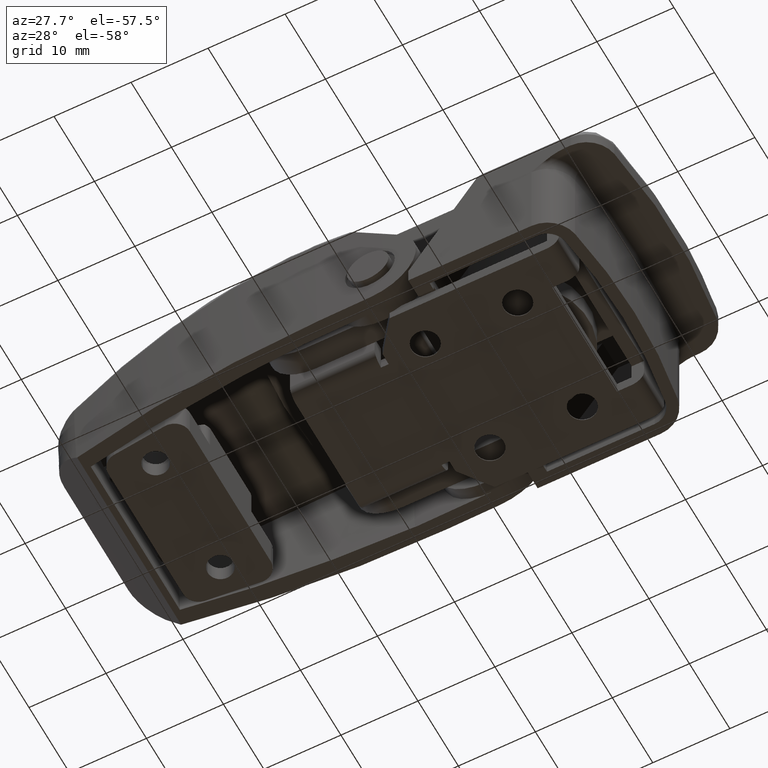
[diagram: clean part render]
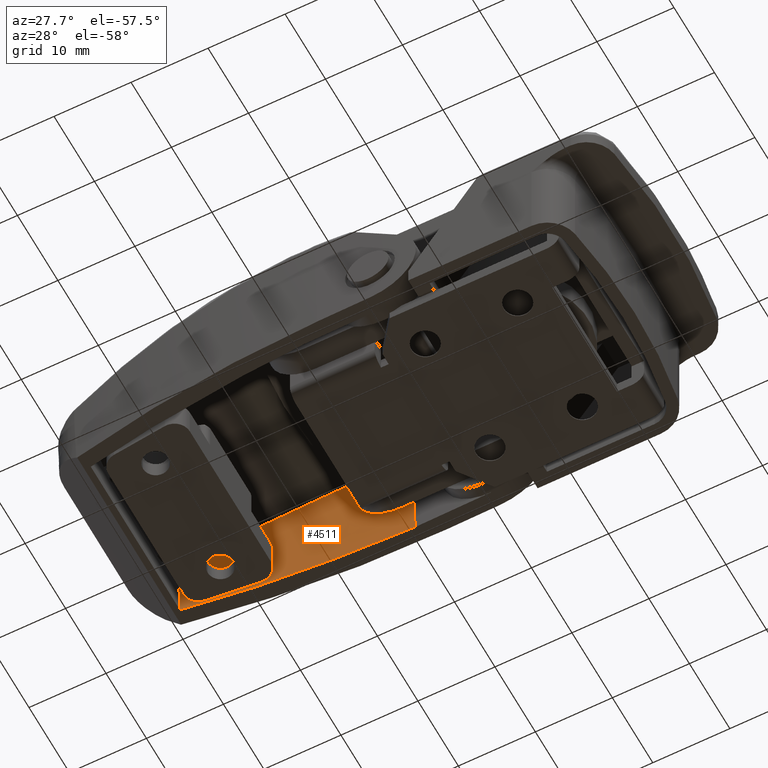
[diagram: same view with one face highlighted and labeled with its STEP entity id]
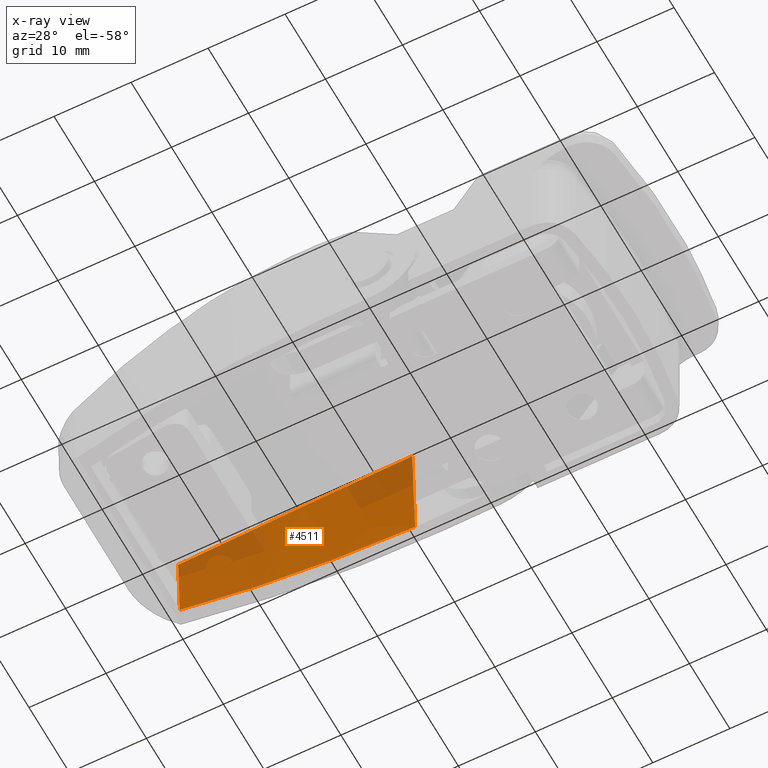
[diagram: x-ray of the same camera — body ghosted, the highlighted face saturated]
A machine part, auxiliary view. The second image highlights one B-rep face of the part: STEP entity #4511.
The next image is the same camera in x-ray: the body ghosted, the highlighted face saturated — about 22% of this face is hidden behind the body in this view.
In plain terms, the highlighted face is a freeform B-spline surface patch.
Its self-contained STEP definition (entity closure, byte-faithful):
#107=B_SPLINE_CURVE_WITH_KNOTS('',3,(#7676,#7677,#7678,#7679),
 .UNSPECIFIED.,.F.,.F.,(4,4),(0.,1.),.UNSPECIFIED.);
#120=B_SPLINE_CURVE_WITH_KNOTS('',3,(#8166,#8167,#8168,#8169),
 .UNSPECIFIED.,.F.,.F.,(4,4),(0.,1.),.UNSPECIFIED.);
#178=B_SPLINE_SURFACE_WITH_KNOTS('',3,1,((#8421,#8422),(#8423,#8424),(#8425,
#8426),(#8427,#8428)),.UNSPECIFIED.,.F.,.F.,.F.,(4,4),(2,2),(0.,1.),(0.,
1.84905431689721),.UNSPECIFIED.);
#523=FACE_OUTER_BOUND('',#831,.T.);
#831=EDGE_LOOP('',(#3556,#3557,#3558,#3559));
#1098=LINE('',#7587,#1450);
#1143=LINE('',#8396,#1495);
#1450=VECTOR('',#5486,9.76343545024876);
#1495=VECTOR('',#5655,15.4087859741434);
#2049=VERTEX_POINT('',#7584);
#2050=VERTEX_POINT('',#7586);
#2057=VERTEX_POINT('',#7675);
#2096=VERTEX_POINT('',#8164);
#2528=EDGE_CURVE('',#2049,#2050,#1098,.T.);
#2537=EDGE_CURVE('',#2057,#2050,#107,.T.);
#2601=EDGE_CURVE('',#2096,#2049,#120,.T.);
#2634=EDGE_CURVE('',#2096,#2057,#1143,.T.);
#3556=ORIENTED_EDGE('',*,*,#2634,.T.);
#3557=ORIENTED_EDGE('',*,*,#2537,.T.);
#3558=ORIENTED_EDGE('',*,*,#2528,.F.);
#3559=ORIENTED_EDGE('',*,*,#2601,.F.);
#4511=ADVANCED_FACE('',(#523),#178,.F.);
#5486=DIRECTION('',(-4.85343398743238E-16,1.,-2.00133706347235E-14));
#5655=DIRECTION('',(-4.85343398743238E-16,1.,1.08076946472762E-16));
#7584=CARTESIAN_POINT('',(-39.,-6.00000000000001,-11.0168984994584));
#7586=CARTESIAN_POINT('',(-39.,3.76343545024875,-11.0168984994585));
#7587=CARTESIAN_POINT('',(-39.,3.76343545024876,-11.0168984994585));
#7675=CARTESIAN_POINT('',(-10.,9.40878597414338,-13.9740052686612));
#7676=CARTESIAN_POINT('Ctrl Pts',(-10.,9.40878597414338,-13.9740052686612));
#7677=CARTESIAN_POINT('Ctrl Pts',(-13.3333333333333,9.40878597414338,-13.9740052686612));
#7678=CARTESIAN_POINT('Ctrl Pts',(-29.3333333333333,7.5270024661785,-12.9883030122603));
#7679=CARTESIAN_POINT('Ctrl Pts',(-39.,3.76343545024875,-11.0168984994585));
#8164=CARTESIAN_POINT('',(-9.99999999999999,-6.,-13.9740052686612));
#8166=CARTESIAN_POINT('Ctrl Pts',(-9.99999999999999,-6.,-13.9740052686612));
#8167=CARTESIAN_POINT('Ctrl Pts',(-13.3333333333333,-6.,-13.9740052686612));
#8168=CARTESIAN_POINT('Ctrl Pts',(-29.3333333333333,-6.00000000000001,-12.9883030122602));
#8169=CARTESIAN_POINT('Ctrl Pts',(-39.,-6.00000000000001,-11.0168984994584));
#8396=CARTESIAN_POINT('',(-9.99999999999999,-6.,-13.9740052686612));
#8421=CARTESIAN_POINT('Ctrl Pts',(-9.99999999999999,-6.,-13.9740052686612));
#8422=CARTESIAN_POINT('Ctrl Pts',(-10.,12.4905431689721,-13.9740052686612));
#8423=CARTESIAN_POINT('Ctrl Pts',(-13.3333333333333,-6.,-13.9740052686612));
#8424=CARTESIAN_POINT('Ctrl Pts',(-13.3333333333333,12.4905431689721,-13.9740052686612));
#8425=CARTESIAN_POINT('Ctrl Pts',(-29.3333333333333,-6.00000000000001,-12.9883030122602));
#8426=CARTESIAN_POINT('Ctrl Pts',(-29.3333333333333,12.490543168972,-12.9883030122602));
#8427=CARTESIAN_POINT('Ctrl Pts',(-39.,-6.00000000000001,-11.0168984994584));
#8428=CARTESIAN_POINT('Ctrl Pts',(-39.,12.490543168972,-11.0168984994584));